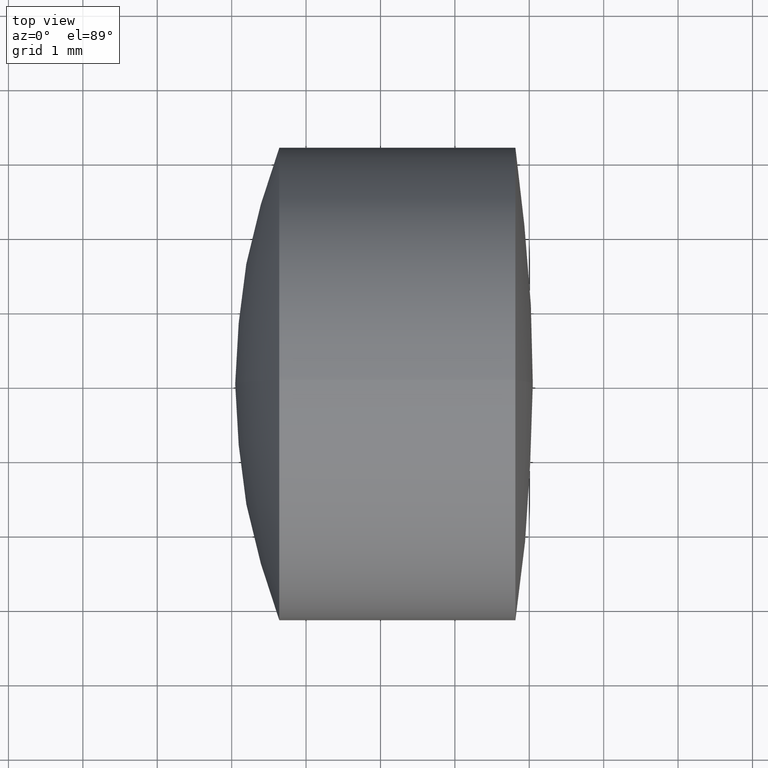
[diagram: clean part render]
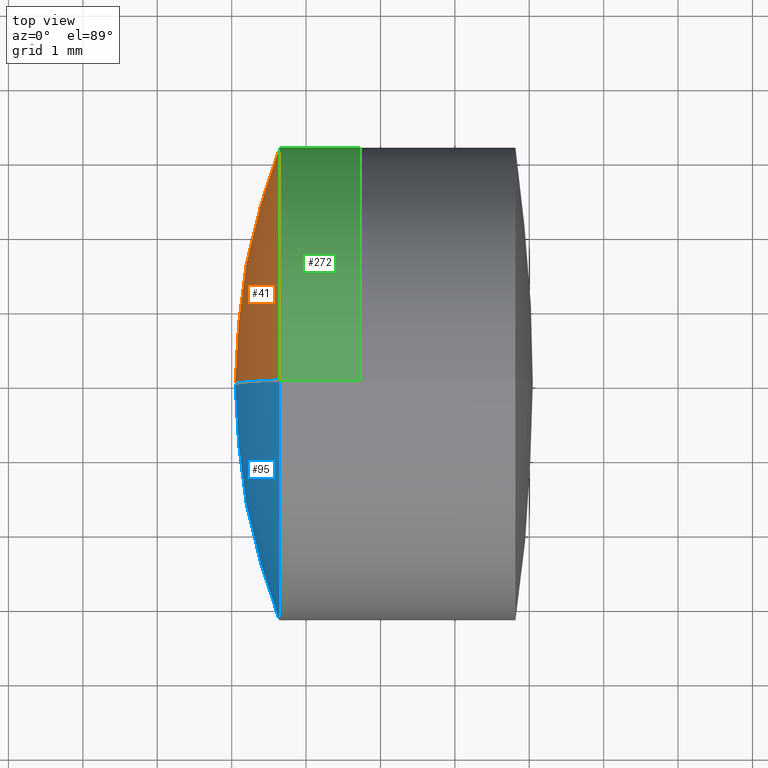
[diagram: same view with three faces highlighted in distinct colors, each labeled with its STEP entity id]
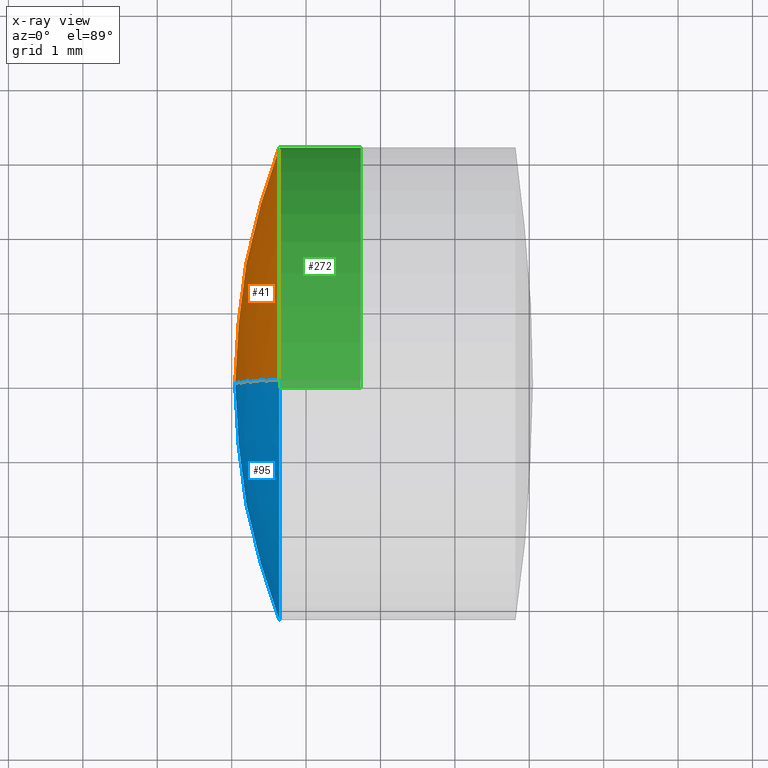
[diagram: x-ray of the same camera — body ghosted, the three highlighted faces saturated]
A machine part, top view with three faces highlighted in distinct colors.
The next image is the same camera in x-ray (body ghosted, the three faces saturated) — at least one of them is partly hidden behind the body in this view.
Their STEP definitions:

[orange] entity #41 — the highlighted spherical surface has radius 8.8 mm.
#7 = DIRECTION ( 'NONE',  ( 0.0000000000000000000, 1.000000000000000000, -0.0000000000000000000 ) ) ;
#14 = VERTEX_POINT ( 'NONE', #37 ) ;
#37 = CARTESIAN_POINT ( 'NONE',  ( -0.3598363093995273800, 0.0000000000000000000, -3.174999999999998500 ) ) ;
#41 = ADVANCED_FACE ( 'NONE', ( #129 ), #275, .T. ) ;
#47 = AXIS2_PLACEMENT_3D ( 'NONE', #294, #87, #258 ) ;
#51 = VERTEX_POINT ( 'NONE', #88 ) ;
#70 = EDGE_CURVE ( 'NONE', #51, #14, #293, .T. ) ;
#75 = ORIENTED_EDGE ( 'NONE', *, *, #89, .T. ) ;
#85 = DIRECTION ( 'NONE',  ( -1.000000000000000000, -0.0000000000000000000, -0.0000000000000000000 ) ) ;
#88 = CARTESIAN_POINT ( 'NONE',  ( -0.3598363093995273800, -3.888253587292844600E-016, 3.174999999999998900 ) ) ;
#87 = DIRECTION ( 'NONE',  ( 0.0000000000000000000, -1.000000000000000000, -1.224646799147353200E-016 ) ) ;
#89 = EDGE_CURVE ( 'NONE', #14, #296, #206, .T. ) ;
#104 = AXIS2_PLACEMENT_3D ( 'NONE', #194, #7, #169 ) ;
#128 = CIRCLE ( 'NONE', #47, 8.800000000000000700 ) ;
#129 = FACE_OUTER_BOUND ( 'NONE', #242, .T. ) ;
#169 = DIRECTION ( 'NONE',  ( 0.0000000000000000000, 0.0000000000000000000, 1.000000000000000000 ) ) ;
#182 = AXIS2_PLACEMENT_3D ( 'NONE', #226, #263, #318 ) ;
#189 = ORIENTED_EDGE ( 'NONE', *, *, #213, .F. ) ;
#194 = CARTESIAN_POINT ( 'NONE',  ( 7.847439426190207200, 0.0000000000000000000, 4.513112964038374400E-016 ) ) ;
#195 = ORIENTED_EDGE ( 'NONE', *, *, #70, .T. ) ;
#199 = AXIS2_PLACEMENT_3D ( 'NONE', #292, #85, #256 ) ;
#206 = CIRCLE ( 'NONE', #104, 8.800000000000000700 ) ;
#213 = EDGE_CURVE ( 'NONE', #51, #296, #128, .T. ) ;
#226 = CARTESIAN_POINT ( 'NONE',  ( 7.847439426190207200, 0.0000000000000000000, 4.513112964038374400E-016 ) ) ;
#242 = EDGE_LOOP ( 'NONE', ( #189, #195, #75 ) ) ;
#256 = DIRECTION ( 'NONE',  ( 0.0000000000000000000, 0.0000000000000000000, 1.000000000000000000 ) ) ;
#255 = CARTESIAN_POINT ( 'NONE',  ( -0.9525605738097929800, 0.0000000000000000000, -8.753329522099799000E-017 ) ) ;
#258 = DIRECTION ( 'NONE',  ( 0.0000000000000000000, 1.224646799147353200E-016, -1.000000000000000000 ) ) ;
#263 = DIRECTION ( 'NONE',  ( -0.0000000000000000000, -1.000000000000000000, -0.0000000000000000000 ) ) ;
#275 = SPHERICAL_SURFACE ( 'NONE', #182, 8.800000000000000700 ) ;
#292 = CARTESIAN_POINT ( 'NONE',  ( -0.3598363093995273800, 0.0000000000000000000, 0.0000000000000000000 ) ) ;
#293 = CIRCLE ( 'NONE', #199, 3.175000000000000300 ) ;
#294 = CARTESIAN_POINT ( 'NONE',  ( 7.847439426190207200, 0.0000000000000000000, 4.513112964038374400E-016 ) ) ;
#296 = VERTEX_POINT ( 'NONE', #255 ) ;
#318 = DIRECTION ( 'NONE',  ( 0.0000000000000000000, 0.0000000000000000000, -1.000000000000000000 ) ) ;

[blue] entity #95 — the highlighted spherical surface has radius 8.8 mm.
#3 = ORIENTED_EDGE ( 'NONE', *, *, #89, .F. ) ;
#5 = CIRCLE ( 'NONE', #19, 3.175000000000000300 ) ;
#7 = DIRECTION ( 'NONE',  ( 0.0000000000000000000, 1.000000000000000000, -0.0000000000000000000 ) ) ;
#14 = VERTEX_POINT ( 'NONE', #37 ) ;
#19 = AXIS2_PLACEMENT_3D ( 'NONE', #225, #36, #200 ) ;
#37 = CARTESIAN_POINT ( 'NONE',  ( -0.3598363093995273800, 0.0000000000000000000, -3.174999999999998500 ) ) ;
#36 = DIRECTION ( 'NONE',  ( -1.000000000000000000, -0.0000000000000000000, -0.0000000000000000000 ) ) ;
#44 = ORIENTED_EDGE ( 'NONE', *, *, #205, .T. ) ;
#47 = AXIS2_PLACEMENT_3D ( 'NONE', #294, #87, #258 ) ;
#51 = VERTEX_POINT ( 'NONE', #88 ) ;
#88 = CARTESIAN_POINT ( 'NONE',  ( -0.3598363093995273800, -3.888253587292844600E-016, 3.174999999999998900 ) ) ;
#87 = DIRECTION ( 'NONE',  ( 0.0000000000000000000, -1.000000000000000000, -1.224646799147353200E-016 ) ) ;
#89 = EDGE_CURVE ( 'NONE', #14, #296, #206, .T. ) ;
#95 = ADVANCED_FACE ( 'NONE', ( #103 ), #245, .T. ) ;
#99 = ORIENTED_EDGE ( 'NONE', *, *, #213, .T. ) ;
#103 = FACE_OUTER_BOUND ( 'NONE', #153, .T. ) ;
#104 = AXIS2_PLACEMENT_3D ( 'NONE', #194, #7, #169 ) ;
#112 = CARTESIAN_POINT ( 'NONE',  ( 7.847439426190207200, 0.0000000000000000000, 4.513112964038374400E-016 ) ) ;
#128 = CIRCLE ( 'NONE', #47, 8.800000000000000700 ) ;
#153 = EDGE_LOOP ( 'NONE', ( #44, #99, #3 ) ) ;
#164 = AXIS2_PLACEMENT_3D ( 'NONE', #112, #287, #219 ) ;
#169 = DIRECTION ( 'NONE',  ( 0.0000000000000000000, 0.0000000000000000000, 1.000000000000000000 ) ) ;
#194 = CARTESIAN_POINT ( 'NONE',  ( 7.847439426190207200, 0.0000000000000000000, 4.513112964038374400E-016 ) ) ;
#200 = DIRECTION ( 'NONE',  ( 0.0000000000000000000, 0.0000000000000000000, 1.000000000000000000 ) ) ;
#205 = EDGE_CURVE ( 'NONE', #14, #51, #5, .T. ) ;
#206 = CIRCLE ( 'NONE', #104, 8.800000000000000700 ) ;
#213 = EDGE_CURVE ( 'NONE', #51, #296, #128, .T. ) ;
#219 = DIRECTION ( 'NONE',  ( 0.0000000000000000000, 0.0000000000000000000, -1.000000000000000000 ) ) ;
#225 = CARTESIAN_POINT ( 'NONE',  ( -0.3598363093995273800, 0.0000000000000000000, 0.0000000000000000000 ) ) ;
#245 = SPHERICAL_SURFACE ( 'NONE', #164, 8.800000000000000700 ) ;
#255 = CARTESIAN_POINT ( 'NONE',  ( -0.9525605738097929800, 0.0000000000000000000, -8.753329522099799000E-017 ) ) ;
#258 = DIRECTION ( 'NONE',  ( 0.0000000000000000000, 1.224646799147353200E-016, -1.000000000000000000 ) ) ;
#287 = DIRECTION ( 'NONE',  ( -0.0000000000000000000, -1.000000000000000000, -0.0000000000000000000 ) ) ;
#294 = CARTESIAN_POINT ( 'NONE',  ( 7.847439426190207200, 0.0000000000000000000, 4.513112964038374400E-016 ) ) ;
#296 = VERTEX_POINT ( 'NONE', #255 ) ;

[green] entity #272 — the highlighted cylindrical surface (partial cylindrical patch) has radius 3.175 mm, axis along (-1, -0, -0).
#9 = DIRECTION ( 'NONE',  ( 0.0000000000000000000, 0.0000000000000000000, 1.000000000000000000 ) ) ;
#14 = VERTEX_POINT ( 'NONE', #37 ) ;
#30 = CARTESIAN_POINT ( 'NONE',  ( -9.702612178336682500, 0.0000000000000000000, 3.175000000000000300 ) ) ;
#37 = CARTESIAN_POINT ( 'NONE',  ( -0.3598363093995273800, 0.0000000000000000000, -3.174999999999998500 ) ) ;
#38 = VECTOR ( 'NONE', #140, 1000.000000000000000 ) ;
#40 = CARTESIAN_POINT ( 'NONE',  ( -9.702612178336682500, 3.888253587292846600E-016, -3.175000000000000300 ) ) ;
#50 = DIRECTION ( 'NONE',  ( -1.000000000000000000, -0.0000000000000000000, -0.0000000000000000000 ) ) ;
#51 = VERTEX_POINT ( 'NONE', #88 ) ;
#56 = DIRECTION ( 'NONE',  ( 0.0000000000000000000, 0.0000000000000000000, 1.000000000000000000 ) ) ;
#64 = ORIENTED_EDGE ( 'NONE', *, *, #166, .T. ) ;
#70 = EDGE_CURVE ( 'NONE', #51, #14, #293, .T. ) ;
#71 = LINE ( 'NONE', #40, #134 ) ;
#81 = CARTESIAN_POINT ( 'NONE',  ( 0.7335758746331577700, 0.0000000000000000000, 0.0000000000000000000 ) ) ;
#85 = DIRECTION ( 'NONE',  ( -1.000000000000000000, -0.0000000000000000000, -0.0000000000000000000 ) ) ;
#88 = CARTESIAN_POINT ( 'NONE',  ( -0.3598363093995273800, -3.888253587292844600E-016, 3.174999999999998900 ) ) ;
#92 = EDGE_CURVE ( 'NONE', #173, #51, #329, .T. ) ;
#94 = EDGE_CURVE ( 'NONE', #173, #111, #185, .T. ) ;
#111 = VERTEX_POINT ( 'NONE', #192 ) ;
#118 = FACE_OUTER_BOUND ( 'NONE', #336, .T. ) ;
#127 = AXIS2_PLACEMENT_3D ( 'NONE', #81, #251, #56 ) ;
#134 = VECTOR ( 'NONE', #50, 1000.000000000000000 ) ;
#140 = DIRECTION ( 'NONE',  ( -1.000000000000000000, -0.0000000000000000000, -0.0000000000000000000 ) ) ;
#155 = AXIS2_PLACEMENT_3D ( 'NONE', #230, #338, #9 ) ;
#166 = EDGE_CURVE ( 'NONE', #111, #14, #71, .T. ) ;
#173 = VERTEX_POINT ( 'NONE', #264 ) ;
#185 = CIRCLE ( 'NONE', #127, 3.175000000000000300 ) ;
#192 = CARTESIAN_POINT ( 'NONE',  ( 0.7335758746331577700, 3.888253587292846600E-016, -3.175000000000000300 ) ) ;
#199 = AXIS2_PLACEMENT_3D ( 'NONE', #292, #85, #256 ) ;
#230 = CARTESIAN_POINT ( 'NONE',  ( -9.702612178336682500, 0.0000000000000000000, 0.0000000000000000000 ) ) ;
#251 = DIRECTION ( 'NONE',  ( -1.000000000000000000, -0.0000000000000000000, -0.0000000000000000000 ) ) ;
#254 = ORIENTED_EDGE ( 'NONE', *, *, #92, .F. ) ;
#256 = DIRECTION ( 'NONE',  ( 0.0000000000000000000, 0.0000000000000000000, 1.000000000000000000 ) ) ;
#264 = CARTESIAN_POINT ( 'NONE',  ( 0.7335758746331577700, 0.0000000000000000000, 3.175000000000000300 ) ) ;
#267 = CYLINDRICAL_SURFACE ( 'NONE', #155, 3.175000000000000300 ) ;
#272 = ADVANCED_FACE ( 'NONE', ( #118 ), #267, .T. ) ;
#292 = CARTESIAN_POINT ( 'NONE',  ( -0.3598363093995273800, 0.0000000000000000000, 0.0000000000000000000 ) ) ;
#293 = CIRCLE ( 'NONE', #199, 3.175000000000000300 ) ;
#316 = ORIENTED_EDGE ( 'NONE', *, *, #70, .F. ) ;
#324 = ORIENTED_EDGE ( 'NONE', *, *, #94, .T. ) ;
#329 = LINE ( 'NONE', #30, #38 ) ;
#336 = EDGE_LOOP ( 'NONE', ( #324, #64, #316, #254 ) ) ;
#338 = DIRECTION ( 'NONE',  ( -1.000000000000000000, -0.0000000000000000000, -0.0000000000000000000 ) ) ;